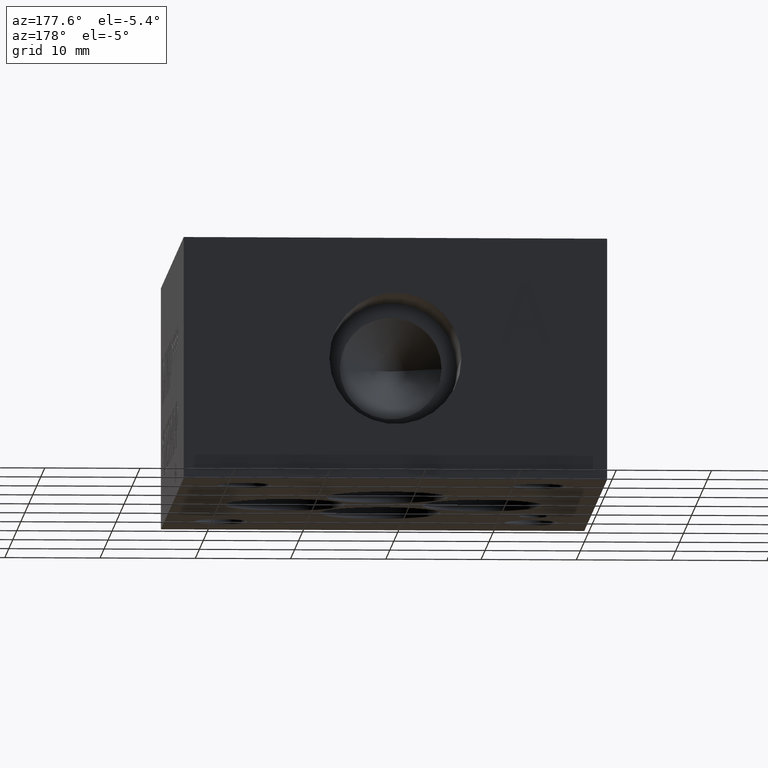
[diagram: clean part render]
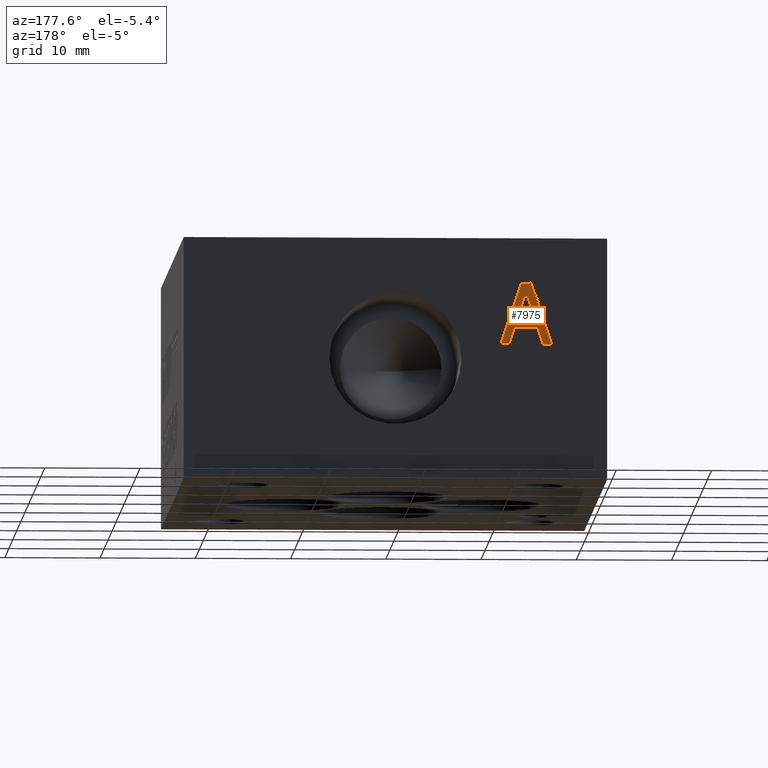
[diagram: same view with one face highlighted and labeled with its STEP entity id]
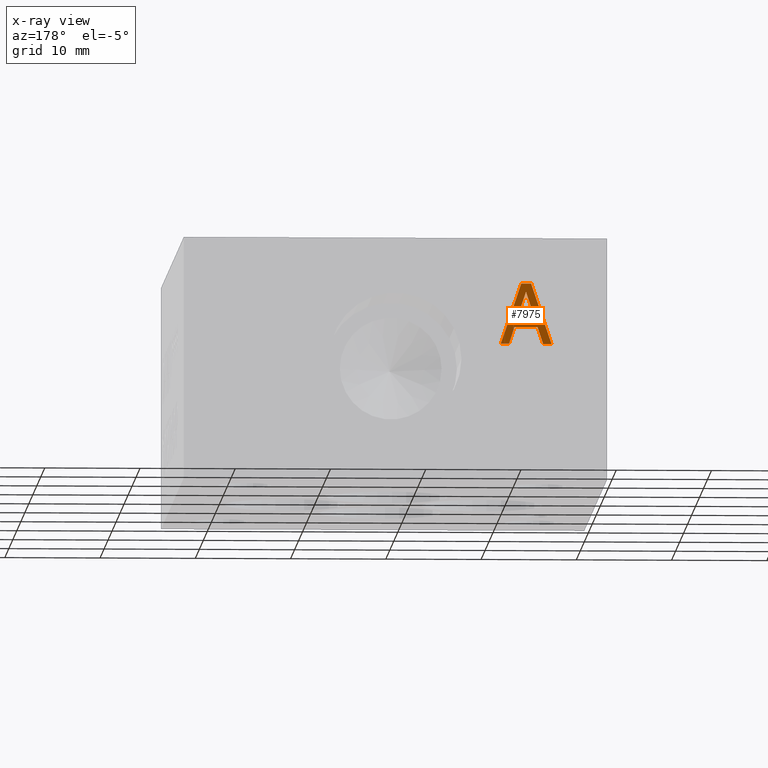
[diagram: x-ray of the same camera — body ghosted, the highlighted face saturated]
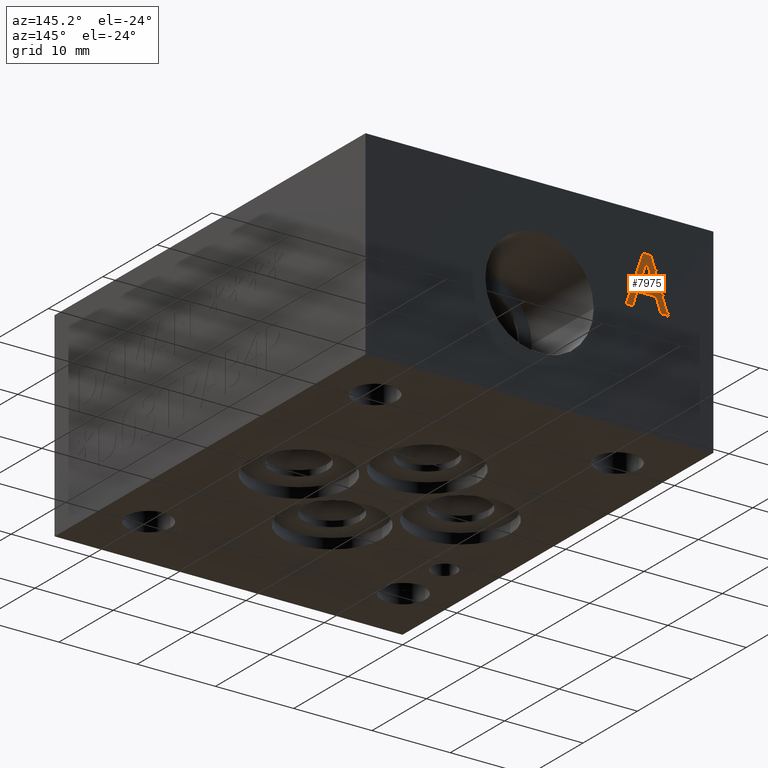
[diagram: same view with one face highlighted and labeled with its STEP entity id]
A machine part, auxiliary view. The second image highlights one B-rep face of the part: STEP entity #7975.
The next image is the same camera in x-ray: the body ghosted, the highlighted face saturated — about 0% of this face is hidden behind the body in this view.
A second angle (auxiliary view) of the same face is appended — the face is thin or edge-on in the first view.
In plain terms, the highlighted planar face has unit normal (0, -1, 0).
Its self-contained STEP definition (entity closure, byte-faithful):
#137=FACE_BOUND('',#1226,.T.);
#423=PLANE('',#8328);
#782=FACE_OUTER_BOUND('',#1225,.T.);
#1225=EDGE_LOOP('',(#6823,#6824,#6825,#6826,#6827,#6828,#6829,#6830));
#1226=EDGE_LOOP('',(#6831,#6832,#6833));
#2062=LINE('',#12841,#2910);
#2065=LINE('',#12847,#2913);
#2068=LINE('',#12851,#2916);
#2071=LINE('',#12859,#2919);
#2075=LINE('',#12866,#2923);
#2078=LINE('',#12872,#2926);
#2081=LINE('',#12878,#2929);
#2084=LINE('',#12884,#2932);
#2087=LINE('',#12890,#2935);
#2090=LINE('',#12896,#2938);
#2092=LINE('',#12899,#2940);
#2910=VECTOR('',#9665,10.);
#2913=VECTOR('',#9670,10.);
#2916=VECTOR('',#9675,10.);
#2919=VECTOR('',#9680,10.);
#2923=VECTOR('',#9686,10.);
#2926=VECTOR('',#9691,10.);
#2929=VECTOR('',#9696,10.);
#2932=VECTOR('',#9701,10.);
#2935=VECTOR('',#9706,10.);
#2938=VECTOR('',#9711,10.);
#2940=VECTOR('',#9715,10.);
#3806=VERTEX_POINT('',#12838);
#3807=VERTEX_POINT('',#12840);
#3809=VERTEX_POINT('',#12846);
#3812=VERTEX_POINT('',#12856);
#3813=VERTEX_POINT('',#12858);
#3815=VERTEX_POINT('',#12864);
#3817=VERTEX_POINT('',#12870);
#3819=VERTEX_POINT('',#12876);
#3821=VERTEX_POINT('',#12882);
#3823=VERTEX_POINT('',#12888);
#3825=VERTEX_POINT('',#12894);
#4825=EDGE_CURVE('',#3806,#3807,#2062,.T.);
#4828=EDGE_CURVE('',#3807,#3809,#2065,.T.);
#4831=EDGE_CURVE('',#3809,#3806,#2068,.T.);
#4834=EDGE_CURVE('',#3812,#3813,#2071,.T.);
#4838=EDGE_CURVE('',#3815,#3812,#2075,.T.);
#4841=EDGE_CURVE('',#3817,#3815,#2078,.T.);
#4844=EDGE_CURVE('',#3819,#3817,#2081,.T.);
#4847=EDGE_CURVE('',#3821,#3819,#2084,.T.);
#4850=EDGE_CURVE('',#3823,#3821,#2087,.T.);
#4853=EDGE_CURVE('',#3825,#3823,#2090,.T.);
#4855=EDGE_CURVE('',#3813,#3825,#2092,.T.);
#6823=ORIENTED_EDGE('',*,*,#4855,.F.);
#6824=ORIENTED_EDGE('',*,*,#4834,.F.);
#6825=ORIENTED_EDGE('',*,*,#4838,.F.);
#6826=ORIENTED_EDGE('',*,*,#4841,.F.);
#6827=ORIENTED_EDGE('',*,*,#4844,.F.);
#6828=ORIENTED_EDGE('',*,*,#4847,.F.);
#6829=ORIENTED_EDGE('',*,*,#4850,.F.);
#6830=ORIENTED_EDGE('',*,*,#4853,.F.);
#6831=ORIENTED_EDGE('',*,*,#4825,.F.);
#6832=ORIENTED_EDGE('',*,*,#4831,.F.);
#6833=ORIENTED_EDGE('',*,*,#4828,.F.);
#7975=ADVANCED_FACE('',(#782,#137),#423,.F.);
#8328=AXIS2_PLACEMENT_3D('',#12900,#9716,#9717);
#9665=DIRECTION('',(0.310824121666872,0.,-0.950467445728689));
#9670=DIRECTION('',(-1.,0.,-2.26509638202494E-15));
#9675=DIRECTION('',(0.312300861312511,0.,0.949983248285707));
#9680=DIRECTION('',(1.,0.,2.59940277575753E-15));
#9686=DIRECTION('',(0.308774363938385,0.,-0.951135317488761));
#9691=DIRECTION('',(1.,0.,3.66455083461359E-15));
#9696=DIRECTION('',(0.308774363938377,0.,0.951135317488763));
#9701=DIRECTION('',(1.,0.,2.49422462876157E-15));
#9706=DIRECTION('',(-0.319451166674565,0.,-0.947602739606772));
#9711=DIRECTION('',(-1.,0.,-4.27228575025496E-15));
#9715=DIRECTION('',(-0.319451166674571,0.,0.94760273960677));
#9716=DIRECTION('center_axis',(0.,-1.,0.));
#9717=DIRECTION('ref_axis',(0.,0.,-1.));
#12838=CARTESIAN_POINT('',(8.51383715410092,57.11,19.7729942450067));
#12840=CARTESIAN_POINT('',(9.49155188820157,57.11,16.7832455054674));
#12841=CARTESIAN_POINT('',(9.43677105833573,57.11,16.950759516794));
#12846=CARTESIAN_POINT('',(7.53097655297871,57.11,16.7832455054674));
#12847=CARTESIAN_POINT('',(8.0131551398392,57.11,16.7832455054674));
#12851=CARTESIAN_POINT('',(8.07612053316285,57.11,18.4415107017344));
#12856=CARTESIAN_POINT('',(10.29945301059,57.11,14.2875));
#12858=CARTESIAN_POINT('',(11.1536669361727,57.11,14.2875));
#12859=CARTESIAN_POINT('',(10.29945301059,57.11,14.2875));
#12864=CARTESIAN_POINT('',(9.72311590417277,57.11,16.0628241224459));
#12866=CARTESIAN_POINT('',(9.72311590417277,57.11,16.0628241224459));
#12870=CARTESIAN_POINT('',(7.2994125370075,57.11,16.0628241224459));
#12872=CARTESIAN_POINT('',(7.2994125370075,57.11,16.0628241224459));
#12876=CARTESIAN_POINT('',(6.72307543059029,57.11,14.2875));
#12878=CARTESIAN_POINT('',(6.72307543059029,57.11,14.2875));
#12882=CARTESIAN_POINT('',(5.83284043585655,57.11,14.2875));
#12884=CARTESIAN_POINT('',(5.83284043585655,57.11,14.2875));
#12888=CARTESIAN_POINT('',(7.97352111683477,57.11,20.6374999046326));
#12890=CARTESIAN_POINT('',(7.97352111683477,57.11,20.6374999046326));
#12894=CARTESIAN_POINT('',(9.0129862551944,57.11,20.6374999046326));
#12896=CARTESIAN_POINT('',(9.0129862551944,57.11,20.6374999046326));
#12899=CARTESIAN_POINT('',(11.1536669361727,57.11,14.2875));
#12900=CARTESIAN_POINT('Origin',(8.49533372669969,57.11,16.8283170129118));